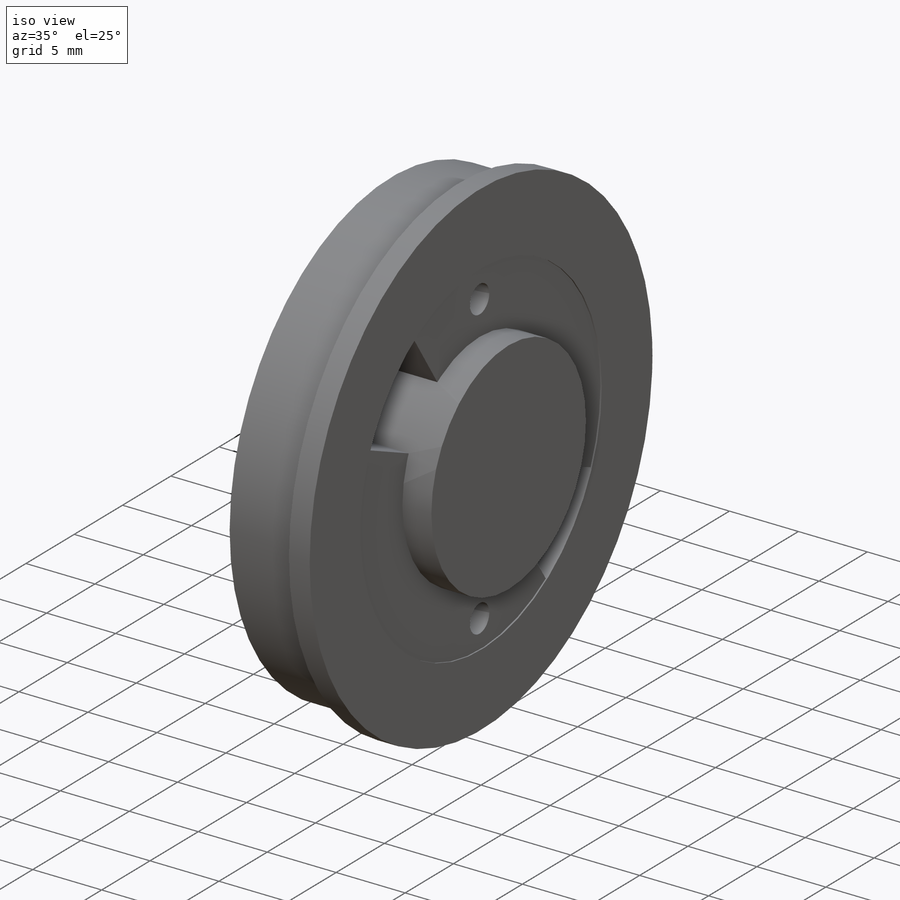
[diagram: iso view]
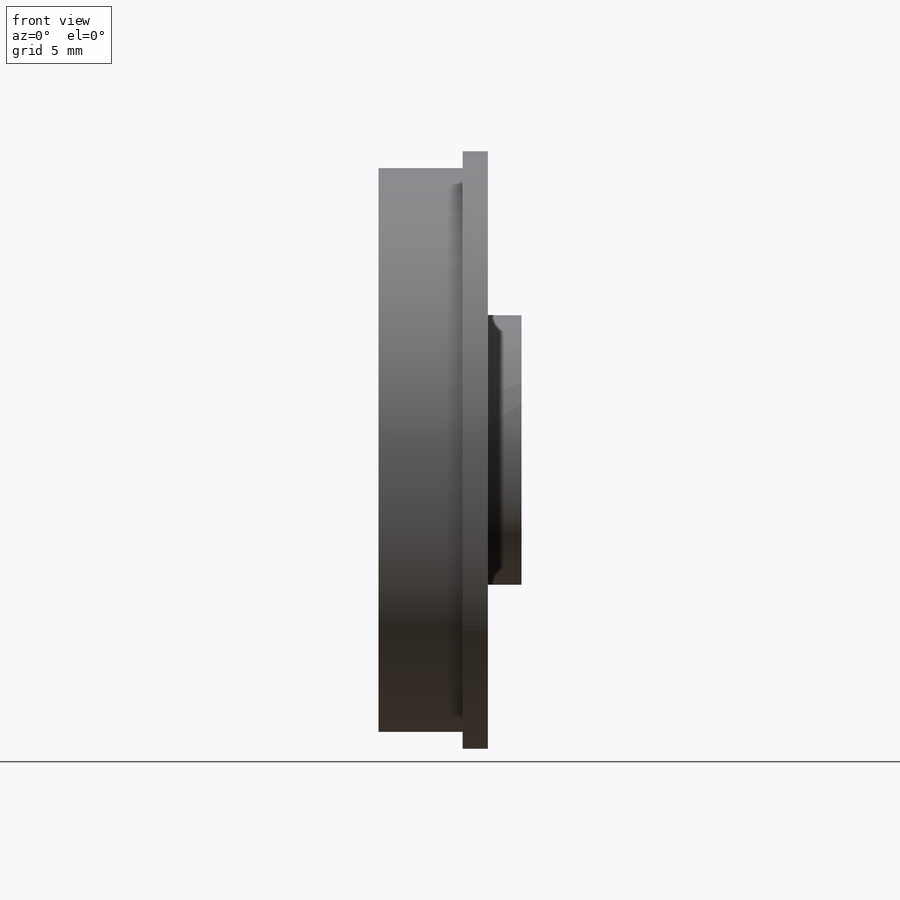
[diagram: front view]
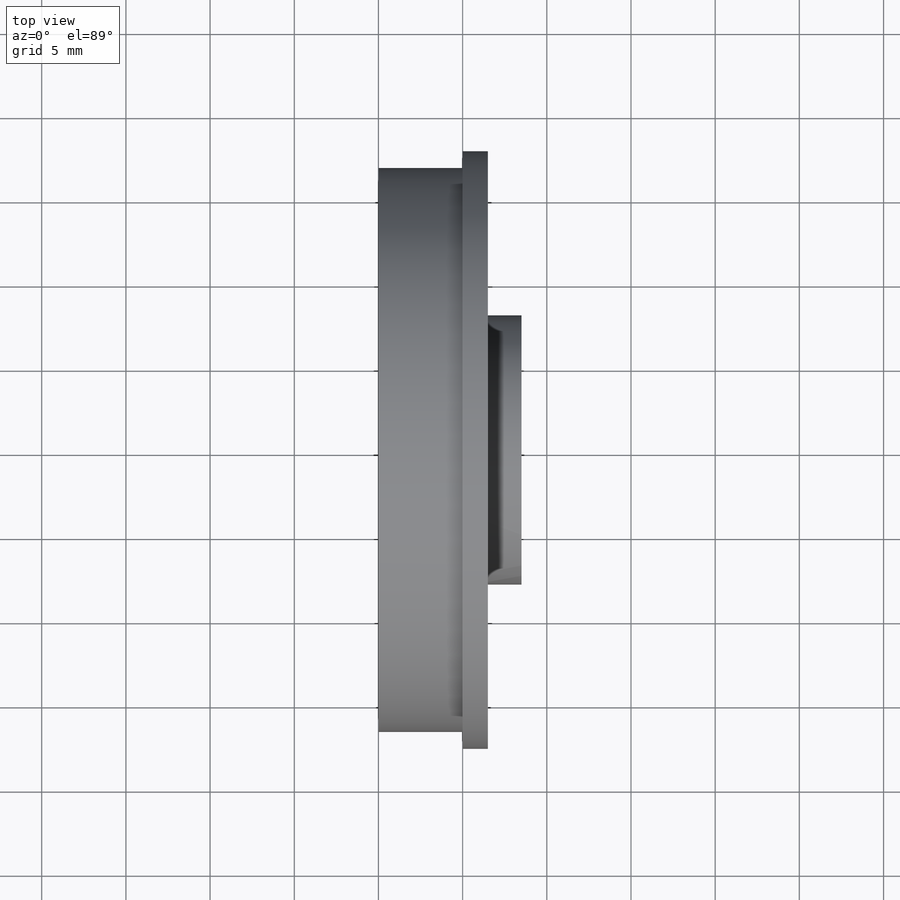
[diagram: top view]
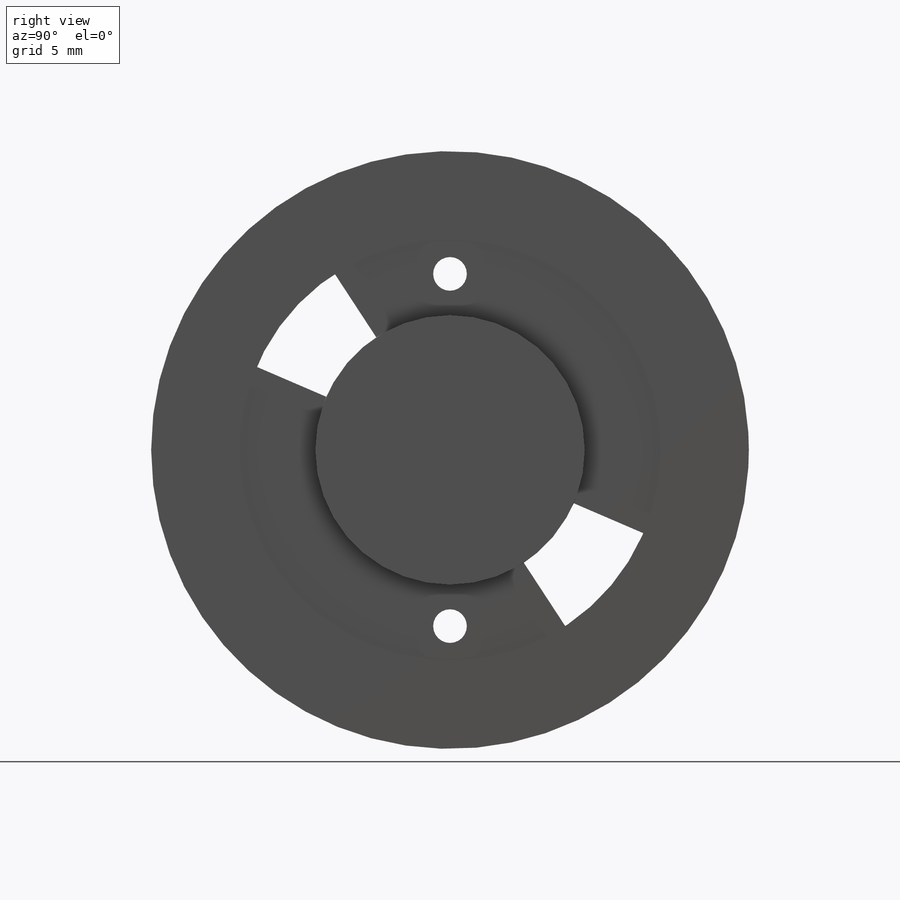
[diagram: right view]
SOLIDWORKS PART (.sldprt)
format: sldprt  version: not decoded by parser v0  size: 225,280 bytes
history: native  units: mm
features: sketch x6, extrude x3, cut_extrude x3, material x1 (+15 scaffold rows collapsed)
feature tree (28):
  scaffold x15  (default folders/planes/origin — collapsed)
  material  "Material <not specified>"
  sketch  "Sketch1"  dims[D1=33.5mm]
  extrude  "Extrude1"  Depth=5mm
  sketch  "Sketch2"  dims[D1=35.5mm]
  extrude  "Extrude2"  Depth=1.5mm
  sketch  "Sketch3"  dims[D1=16.0mm]
  extrude  "Extrude3"  Depth=2mm
  sketch  "Sketch4"  dims[D1=25.0mm]
  cut_extrude  "Cut-Extrude1"  Depth=0.1mm
  sketch  "Sketch5"  dims[D1=25.0mm D2=2.0mm D3=2.0mm]
  cut_extrude  "Cut-Extrude2"  Depth=30.1mm
  sketch  "Sketch6"  dims[D1=2.0mm]
  cut_extrude  "Cut-Extrude3"  Depth=3mm
decode coverage: 12 of 12 modeling features carry decoded parameters
note: suppression state not decoded; provenance and decode notes live in map.json
